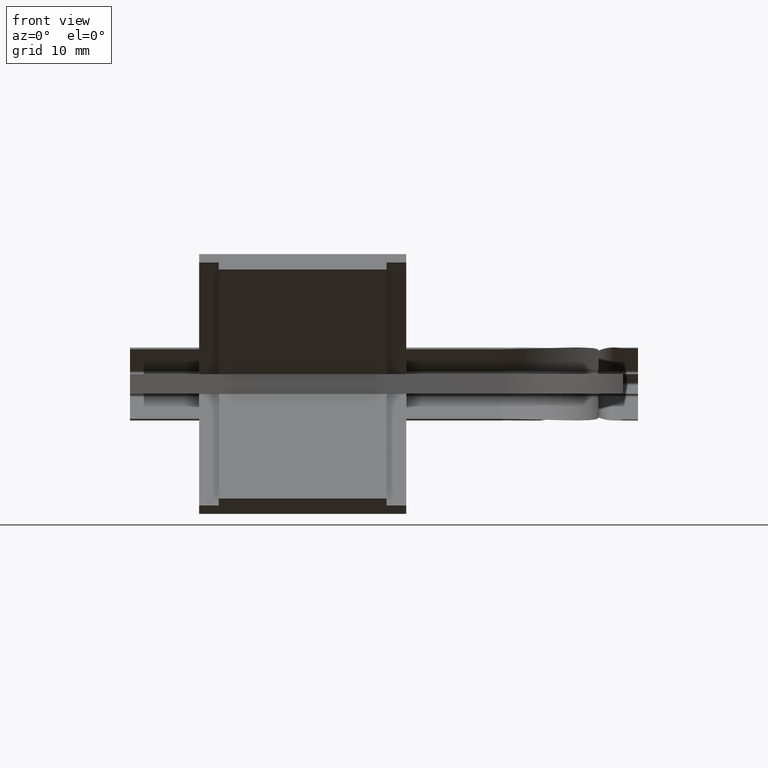
[diagram: clean part render]
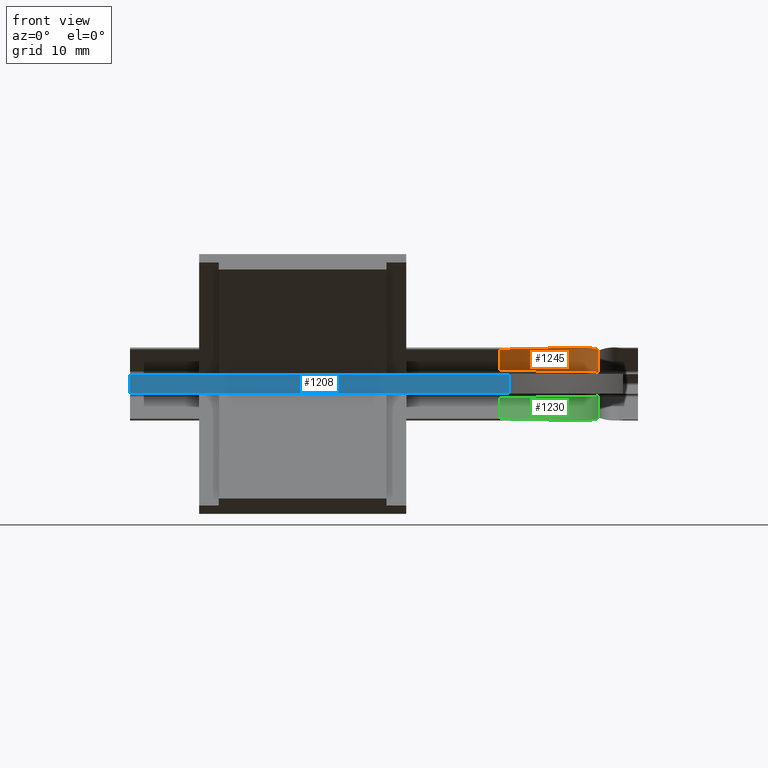
[diagram: same view with three faces highlighted in distinct colors, each labeled with its STEP entity id]
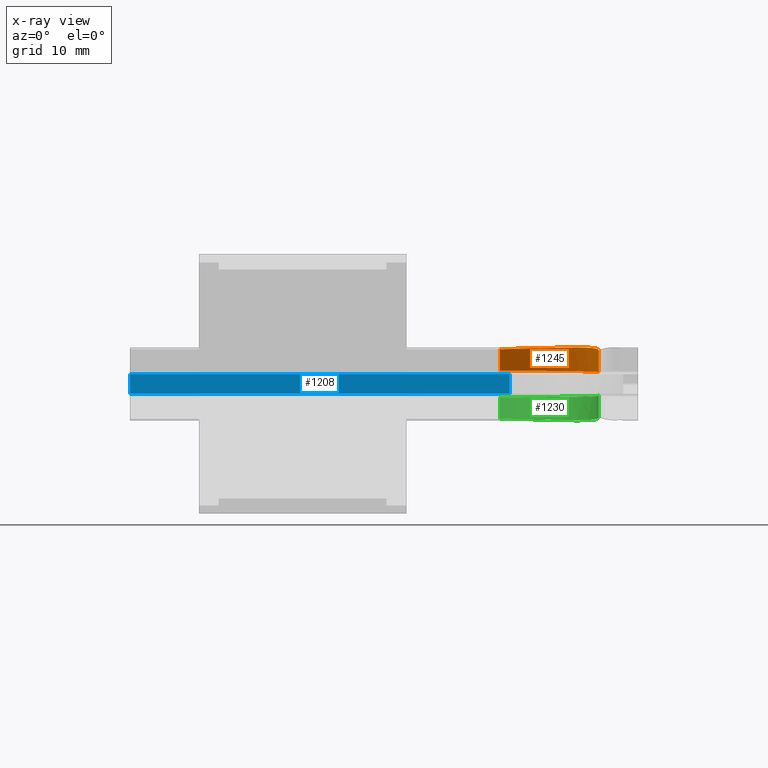
[diagram: x-ray of the same camera — body ghosted, the three highlighted faces saturated]
A machine part, front view with three faces highlighted in distinct colors.
The next image is the same camera in x-ray (body ghosted, the three faces saturated) — at least one of them is partly hidden behind the body in this view.
Their STEP definitions:

[orange] entity #1245 — the highlighted cylindrical surface (partial cylindrical patch) has radius 10 mm, axis along (0, -0.7071, 0.7071).
#29=B_SPLINE_CURVE_WITH_KNOTS('',3,(#2329,#2330,#2331,#2332,#2333,#2334,
#2335,#2336,#2337,#2338),.UNSPECIFIED.,.F.,.F.,(4,2,2,2,4),(-2.20345509147458,
-1.83863532756005,-1.48197378230446,-0.838537074363588,-0.245859271841657),
 .UNSPECIFIED.);
#30=B_SPLINE_CURVE_WITH_KNOTS('',3,(#2340,#2341,#2342,#2343,#2344,#2345,
#2346,#2347,#2348,#2349,#2350,#2351,#2352,#2353,#2354,#2355,#2356,#2357,
#2358,#2359,#2360,#2361),.UNSPECIFIED.,.F.,.F.,(4,3,3,3,3,3,3,4),(-0.183531874820078,
-0.181499913917173,-0.17923327375853,-0.17449172194847,-0.160807518547751,
-0.0924444136685303,-0.0535271469788639,0.),.UNSPECIFIED.);
#60=CYLINDRICAL_SURFACE('',#1368,10.);
#69=ELLIPSE('',#1332,14.2842570685353,10.);
#178=FACE_OUTER_BOUND('',#245,.T.);
#245=EDGE_LOOP('',(#1039,#1040,#1041,#1042,#1043));
#350=LINE('',#2327,#465);
#351=LINE('',#2362,#466);
#465=VECTOR('',#1617,10.);
#466=VECTOR('',#1618,10.);
#599=VERTEX_POINT('',#1860);
#600=VERTEX_POINT('',#1905);
#625=VERTEX_POINT('',#2326);
#626=VERTEX_POINT('',#2328);
#627=VERTEX_POINT('',#2339);
#725=EDGE_CURVE('',#600,#599,#69,.T.);
#775=EDGE_CURVE('',#625,#600,#350,.T.);
#776=EDGE_CURVE('',#626,#625,#29,.T.);
#777=EDGE_CURVE('',#627,#626,#30,.T.);
#778=EDGE_CURVE('',#599,#627,#351,.T.);
#1039=ORIENTED_EDGE('',*,*,#725,.F.);
#1040=ORIENTED_EDGE('',*,*,#775,.F.);
#1041=ORIENTED_EDGE('',*,*,#776,.F.);
#1042=ORIENTED_EDGE('',*,*,#777,.F.);
#1043=ORIENTED_EDGE('',*,*,#778,.F.);
#1245=ADVANCED_FACE('',(#178),#60,.T.);
#1332=AXIS2_PLACEMENT_3D('',#1907,#1523,#1524);
#1368=AXIS2_PLACEMENT_3D('',#2325,#1615,#1616);
#1523=DIRECTION('center_axis',(1.11016861126346E-16,-0.00990050483961299,
-0.999950988800912));
#1524=DIRECTION('ref_axis',(0.,-0.999950988800911,0.00990050483961299));
#1615=DIRECTION('center_axis',(0.,-0.707106781186547,0.707106781186548));
#1616=DIRECTION('ref_axis',(1.,1.57009245868378E-16,1.57009245868377E-16));
#1617=DIRECTION('',(0.,0.707106781186547,-0.707106781186548));
#1618=DIRECTION('',(2.5379309814836E-15,-0.707106781186547,0.707106781186548));
#1860=CARTESIAN_POINT('',(54.,5.31543289325509,1.34142135623731));
#1905=CARTESIAN_POINT('',(64.,19.5989898732234,1.2));
#1907=CARTESIAN_POINT('Origin',(54.,19.5989898732234,1.2));
#2325=CARTESIAN_POINT('Origin',(54.,9.89949493661171,10.8994949366117));
#2326=CARTESIAN_POINT('',(64.,17.354297804505,3.44469206871838));
#2327=CARTESIAN_POINT('',(64.,9.89949493661171,10.8994949366117));
#2328=CARTESIAN_POINT('',(55.822116561885,3.33130042762636,3.56230262763133));
#2329=CARTESIAN_POINT('Ctrl Pts',(55.8221165611165,3.33130043074782,3.56230262745275));
#2330=CARTESIAN_POINT('Ctrl Pts',(56.8013664757037,3.57323219042032,3.57700630131074));
#2331=CARTESIAN_POINT('Ctrl Pts',(57.7166057580286,4.00183379716339,3.6019456250735));
#2332=CARTESIAN_POINT('Ctrl Pts',(59.3594266246862,5.13983239742794,3.65015910262434));
#2333=CARTESIAN_POINT('Ctrl Pts',(60.0737845791503,5.83055043952667,3.67240558031309));
#2334=CARTESIAN_POINT('Ctrl Pts',(61.8060010879556,7.99918089738576,3.70965557539283));
#2335=CARTESIAN_POINT('Ctrl Pts',(62.6578755556601,9.72595935080244,3.70371660033779));
#2336=CARTESIAN_POINT('Ctrl Pts',(63.7386289863734,13.4567023109592,3.61369490081654));
#2337=CARTESIAN_POINT('Ctrl Pts',(64.,15.3931109063672,3.53867528593424));
#2338=CARTESIAN_POINT('Ctrl Pts',(64.,17.354297804505,3.44469206871838));
#2339=CARTESIAN_POINT('',(54.,3.15685424949245,3.49999999999995));
#2340=CARTESIAN_POINT('Ctrl Pts',(54.,3.15685424949245,3.49999999999995));
#2341=CARTESIAN_POINT('Ctrl Pts',(54.0067731945677,3.15685424949245,3.49999999999995));
#2342=CARTESIAN_POINT('Ctrl Pts',(54.0135463765208,3.15686147446624,3.50000254198215));
#2343=CARTESIAN_POINT('Ctrl Pts',(54.020319537659,3.15687592203229,3.50000762595353));
#2344=CARTESIAN_POINT('Ctrl Pts',(54.0278749581471,3.15689203820527,3.50001329709301));
#2345=CARTESIAN_POINT('Ctrl Pts',(54.0354303414765,3.15691714161844,3.50002213128855));
#2346=CARTESIAN_POINT('Ctrl Pts',(54.0429856762776,3.15695122894844,3.50003412857065));
#2347=CARTESIAN_POINT('Ctrl Pts',(54.058790572024,3.15702253574174,3.5000592255118));
#2348=CARTESIAN_POINT('Ctrl Pts',(54.0745951750168,3.1571331555779,3.50009816388156));
#2349=CARTESIAN_POINT('Ctrl Pts',(54.0903993811702,3.15728305777047,3.50015094426837));
#2350=CARTESIAN_POINT('Ctrl Pts',(54.1360106030345,3.15771567818157,3.50030326940952));
#2351=CARTESIAN_POINT('Ctrl Pts',(54.1816167601948,3.15847546212163,3.50057087516917));
#2352=CARTESIAN_POINT('Ctrl Pts',(54.2272153491319,3.15956165529455,3.5009537952602));
#2353=CARTESIAN_POINT('Ctrl Pts',(54.4550153186711,3.16498802434399,3.50286677518139));
#2354=CARTESIAN_POINT('Ctrl Pts',(54.6823442183937,3.17854988743667,3.50764660696452));
#2355=CARTESIAN_POINT('Ctrl Pts',(54.9088845126796,3.20012441936951,3.51531403978947));
#2356=CARTESIAN_POINT('Ctrl Pts',(55.0378477753087,3.2124062169037,3.51967890192674));
#2357=CARTESIAN_POINT('Ctrl Pts',(55.166555550947,3.22728565920132,3.52497955383292));
#2358=CARTESIAN_POINT('Ctrl Pts',(55.2949492153069,3.24474761182987,3.53121982342569));
#2359=CARTESIAN_POINT('Ctrl Pts',(55.4715429776118,3.26876493330159,3.53980274448084));
#2360=CARTESIAN_POINT('Ctrl Pts',(55.6473186277686,3.29763670586227,3.55015645186924));
#2361=CARTESIAN_POINT('Ctrl Pts',(55.8221164717836,3.33130040867739,3.56230262611139));
#2362=CARTESIAN_POINT('',(54.,5.6568542494924,1.));

[blue] entity #1208 — the highlighted planar face has unit normal (0, -1, 0).
#141=FACE_OUTER_BOUND('',#208,.T.);
#208=EDGE_LOOP('',(#831,#832,#833,#834,#835,#836,#837,#838));
#277=LINE('',#1722,#392);
#281=LINE('',#1732,#396);
#282=LINE('',#1734,#397);
#283=LINE('',#1736,#398);
#284=LINE('',#1738,#399);
#285=LINE('',#1740,#400);
#286=LINE('',#1742,#401);
#287=LINE('',#1743,#402);
#392=VECTOR('',#1406,10.);
#396=VECTOR('',#1414,10.);
#397=VECTOR('',#1415,10.);
#398=VECTOR('',#1416,10.);
#399=VECTOR('',#1417,10.);
#400=VECTOR('',#1418,10.);
#401=VECTOR('',#1419,10.);
#402=VECTOR('',#1420,10.);
#541=VERTEX_POINT('',#1719);
#542=VERTEX_POINT('',#1721);
#546=VERTEX_POINT('',#1731);
#547=VERTEX_POINT('',#1733);
#548=VERTEX_POINT('',#1735);
#549=VERTEX_POINT('',#1737);
#550=VERTEX_POINT('',#1739);
#551=VERTEX_POINT('',#1741);
#651=EDGE_CURVE('',#542,#541,#277,.T.);
#656=EDGE_CURVE('',#546,#541,#281,.T.);
#657=EDGE_CURVE('',#547,#546,#282,.T.);
#658=EDGE_CURVE('',#548,#547,#283,.T.);
#659=EDGE_CURVE('',#548,#549,#284,.T.);
#660=EDGE_CURVE('',#550,#549,#285,.T.);
#661=EDGE_CURVE('',#551,#550,#286,.T.);
#662=EDGE_CURVE('',#542,#551,#287,.T.);
#831=ORIENTED_EDGE('',*,*,#651,.T.);
#832=ORIENTED_EDGE('',*,*,#656,.F.);
#833=ORIENTED_EDGE('',*,*,#657,.F.);
#834=ORIENTED_EDGE('',*,*,#658,.F.);
#835=ORIENTED_EDGE('',*,*,#659,.T.);
#836=ORIENTED_EDGE('',*,*,#660,.F.);
#837=ORIENTED_EDGE('',*,*,#661,.F.);
#838=ORIENTED_EDGE('',*,*,#662,.F.);
#1172=PLANE('',#1301);
#1208=ADVANCED_FACE('',(#141),#1172,.T.);
#1301=AXIS2_PLACEMENT_3D('',#1730,#1412,#1413);
#1406=DIRECTION('',(0.,0.,-1.));
#1412=DIRECTION('center_axis',(0.,-1.,0.));
#1413=DIRECTION('ref_axis',(0.,0.,-1.));
#1414=DIRECTION('',(-1.,0.,0.));
#1415=DIRECTION('',(-1.,0.,0.));
#1416=DIRECTION('',(-1.,0.,0.));
#1417=DIRECTION('',(0.,0.,1.));
#1418=DIRECTION('',(1.,0.,-6.12303176911189E-17));
#1419=DIRECTION('',(1.,0.,-6.12303176911189E-17));
#1420=DIRECTION('',(1.,0.,-6.12303176911189E-17));
#1719=CARTESIAN_POINT('',(16.5,3.5527136788005E-14,-1.));
#1721=CARTESIAN_POINT('',(16.5,3.5527136788005E-14,0.999999999999946));
#1722=CARTESIAN_POINT('',(16.5,3.5527136788005E-14,0.));
#1730=CARTESIAN_POINT('Origin',(25.5,3.5527136788005E-14,0.));
#1731=CARTESIAN_POINT('',(25.5,1.65200850549872E-13,-1.));
#1732=CARTESIAN_POINT('',(44.5,3.5527136788005E-14,-1.));
#1733=CARTESIAN_POINT('',(42.5,1.57389838816974E-13,-1.));
#1734=CARTESIAN_POINT('',(44.5,3.5527136788005E-14,-1.));
#1735=CARTESIAN_POINT('',(54.9999999999999,3.7559024481021E-14,-1.));
#1736=CARTESIAN_POINT('',(44.5,3.5527136788005E-14,-1.));
#1737=CARTESIAN_POINT('',(54.9999999999999,3.7559024481021E-14,1.));
#1738=CARTESIAN_POINT('',(54.9999999999999,3.7559024481021E-14,0.));
#1739=CARTESIAN_POINT('',(42.5,2.46469511466785E-13,0.999999999999945));
#1740=CARTESIAN_POINT('',(44.5,3.5527136788005E-14,0.999999999999945));
#1741=CARTESIAN_POINT('',(25.5,2.73114864057789E-13,0.999999999999945));
#1742=CARTESIAN_POINT('',(44.5,3.5527136788005E-14,0.999999999999945));
#1743=CARTESIAN_POINT('',(44.5,3.5527136788005E-14,0.999999999999945));

[green] entity #1230 — the highlighted cylindrical surface (partial cylindrical patch) has radius 10 mm, axis along (0, 0.7071, 0.7071).
#20=B_SPLINE_CURVE_WITH_KNOTS('',3,(#2104,#2105,#2106,#2107,#2108,#2109,
#2110,#2111,#2112,#2113,#2114,#2115,#2116,#2117,#2118,#2119,#2120,#2121,
#2122,#2123,#2124,#2125),.UNSPECIFIED.,.F.,.F.,(4,3,3,3,3,3,3,4),(-0.183500000548177,
-0.113330529106931,-0.100767701827221,-0.0434941943896041,-0.01916760151631,
-0.00816759985294912,-0.0033538490840605,0.),.UNSPECIFIED.);
#21=B_SPLINE_CURVE_WITH_KNOTS('',3,(#2126,#2127,#2128,#2129,#2130,#2131,
#2132,#2133,#2134,#2135,#2136,#2137),.UNSPECIFIED.,.F.,.F.,(4,2,2,2,2,4),
(-1.73368814125416,-1.54589514441405,-1.12157386071195,-0.650308672542289,
-0.299827907905871,-9.20285558869693E-9),.UNSPECIFIED.);
#51=CYLINDRICAL_SURFACE('',#1348,10.);
#71=ELLIPSE('',#1339,14.2842570685353,10.);
#163=FACE_OUTER_BOUND('',#230,.T.);
#230=EDGE_LOOP('',(#970,#971,#972,#973,#974));
#303=LINE('',#1782,#418);
#337=LINE('',#2095,#452);
#418=VECTOR('',#1450,10.);
#452=VECTOR('',#1562,10.);
#566=VERTEX_POINT('',#1776);
#567=VERTEX_POINT('',#1780);
#603=VERTEX_POINT('',#2001);
#610=VERTEX_POINT('',#2094);
#612=VERTEX_POINT('',#2103);
#682=EDGE_CURVE('',#567,#566,#303,.T.);
#732=EDGE_CURVE('',#566,#603,#71,.T.);
#744=EDGE_CURVE('',#610,#603,#337,.T.);
#747=EDGE_CURVE('',#612,#567,#20,.T.);
#748=EDGE_CURVE('',#610,#612,#21,.T.);
#970=ORIENTED_EDGE('',*,*,#732,.F.);
#971=ORIENTED_EDGE('',*,*,#682,.F.);
#972=ORIENTED_EDGE('',*,*,#747,.F.);
#973=ORIENTED_EDGE('',*,*,#748,.F.);
#974=ORIENTED_EDGE('',*,*,#744,.T.);
#1230=ADVANCED_FACE('',(#163),#51,.T.);
#1339=AXIS2_PLACEMENT_3D('',#2003,#1539,#1540);
#1348=AXIS2_PLACEMENT_3D('',#2102,#1564,#1565);
#1450=DIRECTION('',(-2.93045409615455E-15,0.707106781186548,0.707106781186547));
#1539=DIRECTION('center_axis',(-5.3310076877503E-17,-0.00990050483961299,
0.999950988800912));
#1540=DIRECTION('ref_axis',(0.,-0.999950988800911,-0.00990050483961299));
#1562=DIRECTION('',(0.,0.707106781186547,0.707106781186548));
#1564=DIRECTION('center_axis',(0.,0.707106781186547,0.707106781186548));
#1565=DIRECTION('ref_axis',(1.,1.57009245868378E-16,-1.57009245868377E-16));
#1776=CARTESIAN_POINT('',(54.,5.31543289325509,-1.34142135623731));
#1780=CARTESIAN_POINT('',(54.,3.15685424949245,-3.49999999999995));
#1782=CARTESIAN_POINT('',(54.,3.15685424949245,-3.49999999999995));
#2001=CARTESIAN_POINT('',(64.,19.5989898732234,-1.2));
#2003=CARTESIAN_POINT('Origin',(54.,19.5989898732234,-1.2));
#2094=CARTESIAN_POINT('',(64.,17.354297804505,-3.44469206871838));
#2095=CARTESIAN_POINT('',(64.,9.89949493661171,-10.8994949366117));
#2102=CARTESIAN_POINT('Origin',(54.,9.89949493661171,-10.8994949366117));
#2103=CARTESIAN_POINT('',(55.8221165618849,3.33130042762634,-3.56230262763133));
#2104=CARTESIAN_POINT('Ctrl Pts',(55.8221164717836,3.33130040867739,-3.56230262611139));
#2105=CARTESIAN_POINT('Ctrl Pts',(55.5929714948153,3.28717018241684,-3.54638003374389));
#2106=CARTESIAN_POINT('Ctrl Pts',(55.3622156832418,3.25128637467987,-3.53353908030933));
#2107=CARTESIAN_POINT('Ctrl Pts',(55.1302049546602,3.22378029333699,-3.52373601543422));
#2108=CARTESIAN_POINT('Ctrl Pts',(55.0886667949685,3.21885572796754,-3.52198091869046));
#2109=CARTESIAN_POINT('Ctrl Pts',(55.0470884147725,3.21419983452489,-3.52032319755996));
#2110=CARTESIAN_POINT('Ctrl Pts',(55.0054718668156,3.20981354381726,-3.51876260097012));
#2111=CARTESIAN_POINT('Ctrl Pts',(54.8157434230609,3.18981659186736,-3.51164789355552));
#2112=CARTESIAN_POINT('Ctrl Pts',(54.6254434582807,3.17544442063855,-3.50656227902688));
#2113=CARTESIAN_POINT('Ctrl Pts',(54.4347581338286,3.16675994450638,-3.50349430926039));
#2114=CARTESIAN_POINT('Ctrl Pts',(54.3537656390018,3.16307126321835,-3.50219120674762));
#2115=CARTESIAN_POINT('Ctrl Pts',(54.272727887354,3.16041010880585,-3.50125275805621));
#2116=CARTESIAN_POINT('Ctrl Pts',(54.1916589734315,3.15878087592733,-3.50067858846944));
#2117=CARTESIAN_POINT('Ctrl Pts',(54.1550012222766,3.15804416921024,-3.50041896039729));
#2118=CARTESIAN_POINT('Ctrl Pts',(54.1183392745403,3.15751851176385,-3.50023384006841));
#2119=CARTESIAN_POINT('Ctrl Pts',(54.0816744303605,3.15720429330999,-3.50012321241758));
#2120=CARTESIAN_POINT('Ctrl Pts',(54.0656293944356,3.15706678702862,-3.5000748002486));
#2121=CARTESIAN_POINT('Ctrl Pts',(54.0495839907258,3.15696977459352,-3.50004065478613));
#2122=CARTESIAN_POINT('Ctrl Pts',(54.0335383281384,3.15691328804275,-3.50002077549829));
#2123=CARTESIAN_POINT('Ctrl Pts',(54.0223589519398,3.15687393258468,-3.50000692514864));
#2124=CARTESIAN_POINT('Ctrl Pts',(54.0111794969469,3.15685424949245,-3.49999999999995));
#2125=CARTESIAN_POINT('Ctrl Pts',(54.,3.15685424949245,-3.49999999999995));
#2126=CARTESIAN_POINT('Ctrl Pts',(64.,17.354297804505,-3.44469206871838));
#2127=CARTESIAN_POINT('Ctrl Pts',(64.,16.7212207836892,-3.47503013349853));
#2128=CARTESIAN_POINT('Ctrl Pts',(63.9727573536173,16.0883965592997,-3.50352874120964));
#2129=CARTESIAN_POINT('Ctrl Pts',(63.7936839111767,14.0400033543501,-3.58876538001696));
#2130=CARTESIAN_POINT('Ctrl Pts',(63.5260702996662,12.6189070372891,-3.63670824502521));
#2131=CARTESIAN_POINT('Ctrl Pts',(62.620705528881,9.75159337818677,-3.6989597468106));
#2132=CARTESIAN_POINT('Ctrl Pts',(61.9359423854808,8.29097680891677,-3.70809257898597));
#2133=CARTESIAN_POINT('Ctrl Pts',(60.3143942136297,6.06772513339858,-3.67976321075816));
#2134=CARTESIAN_POINT('Ctrl Pts',(59.4884065691023,5.22485957094618,-3.6539052946199));
#2135=CARTESIAN_POINT('Ctrl Pts',(57.6997275051891,3.99393284579956,-3.60148460473291));
#2136=CARTESIAN_POINT('Ctrl Pts',(56.7922673246033,3.57098417017087,-3.57686967536044));
#2137=CARTESIAN_POINT('Ctrl Pts',(55.8221165611164,3.3313004307478,-3.56230262745274));